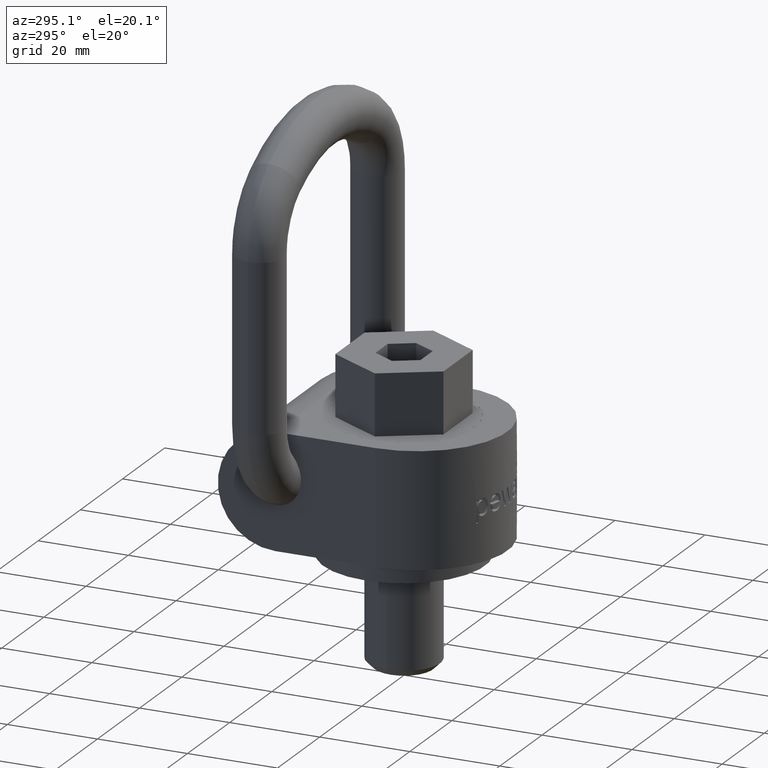
[diagram: clean part render]
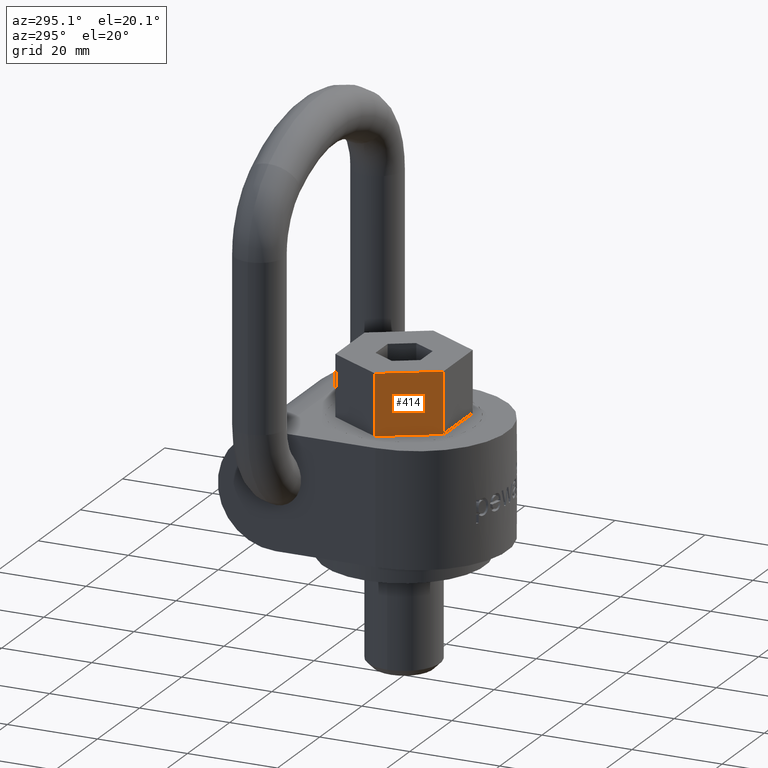
[diagram: same view with one face highlighted and labeled with its STEP entity id]
A machine part, auxiliary view. The second image highlights one B-rep face of the part: STEP entity #414.
In plain terms, the highlighted planar face has unit normal (0.866, 0.5, 0).
Its self-contained STEP definition (entity closure, byte-faithful):
#247=FACE_OUTER_BOUND('',#645,.T.);
#352=PLANE('',#2460);
#414=ADVANCED_FACE('',(#247),#352,.F.);
#645=EDGE_LOOP('',(#1224,#1225,#1226,#1227));
#799=LINE('',#3821,#925);
#805=LINE('',#3834,#931);
#806=LINE('',#3836,#932);
#807=LINE('',#3838,#933);
#925=VECTOR('',#2648,1.);
#931=VECTOR('',#2656,1.);
#932=VECTOR('',#2657,1.);
#933=VECTOR('',#2658,1.);
#1224=ORIENTED_EDGE('',*,*,#2022,.T.);
#1225=ORIENTED_EDGE('',*,*,#2028,.F.);
#1226=ORIENTED_EDGE('',*,*,#2029,.F.);
#1227=ORIENTED_EDGE('',*,*,#2030,.T.);
#1808=VERTEX_POINT('',#3822);
#1809=VERTEX_POINT('',#3823);
#1814=VERTEX_POINT('',#3835);
#1815=VERTEX_POINT('',#3837);
#2022=EDGE_CURVE('',#1808,#1809,#799,.T.);
#2028=EDGE_CURVE('',#1814,#1809,#805,.T.);
#2029=EDGE_CURVE('',#1815,#1814,#806,.T.);
#2030=EDGE_CURVE('',#1815,#1808,#807,.T.);
#2460=AXIS2_PLACEMENT_3D('',#3839,#2659,#2660);
#2648=DIRECTION('',(0.5,-0.866025403784438,2.50385766456193E-16));
#2656=DIRECTION('',(0.,0.,-1.));
#2657=DIRECTION('',(0.5,-0.866025403784438,2.50385766456193E-16));
#2658=DIRECTION('',(0.,0.,-1.));
#2659=DIRECTION('',(0.866025403784439,0.5,0.));
#2660=DIRECTION('',(-0.5,0.866025403784439,0.));
#3821=CARTESIAN_POINT('',(-13.856406460551,-8.88178419700125E-15,25.5));
#3822=CARTESIAN_POINT('',(-13.856406460551,-8.88178419700125E-15,25.5));
#3823=CARTESIAN_POINT('',(-6.92820323027551,-12.,25.5));
#3834=CARTESIAN_POINT('',(-6.92820323027551,-12.,39.));
#3835=CARTESIAN_POINT('',(-6.92820323027551,-12.,39.));
#3836=CARTESIAN_POINT('',(-13.856406460551,-8.88178419700125E-15,39.));
#3837=CARTESIAN_POINT('',(-13.856406460551,-8.88178419700125E-15,39.));
#3838=CARTESIAN_POINT('',(-13.856406460551,-8.88178419700125E-15,39.));
#3839=CARTESIAN_POINT('',(-13.856406460551,-8.88178419700125E-15,39.));